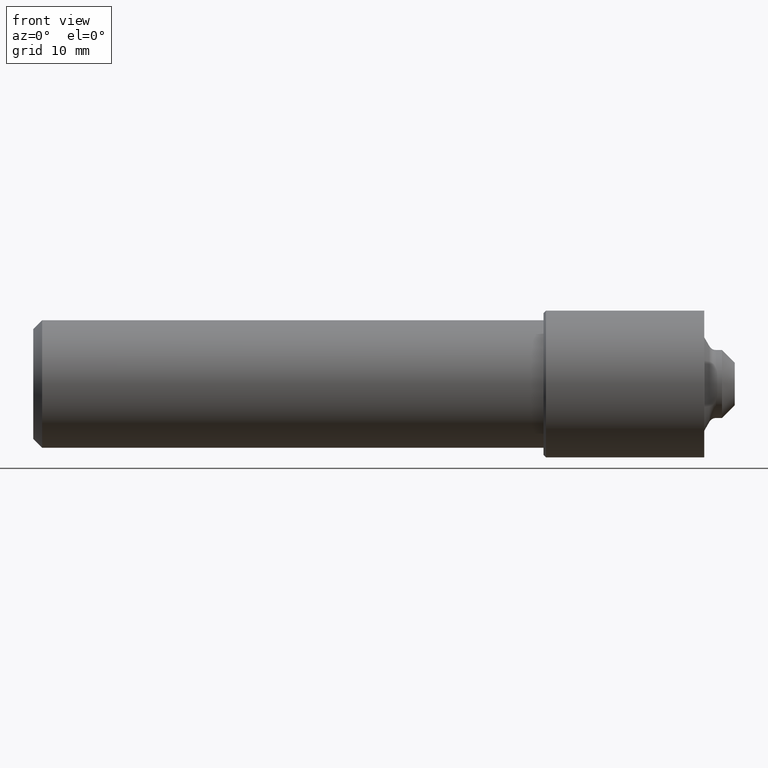
[diagram: clean part render]
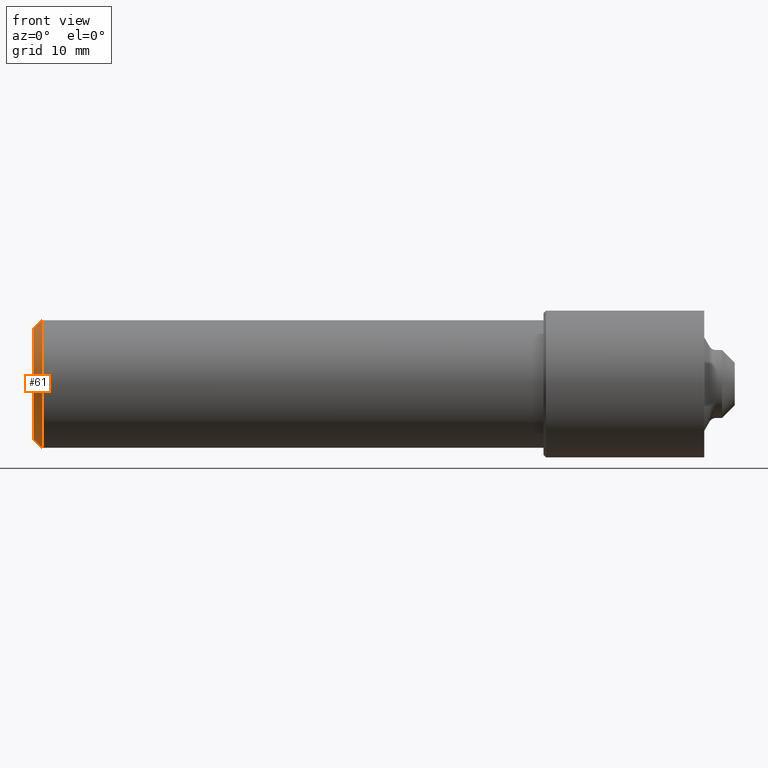
[diagram: same view with one face highlighted and labeled with its STEP entity id]
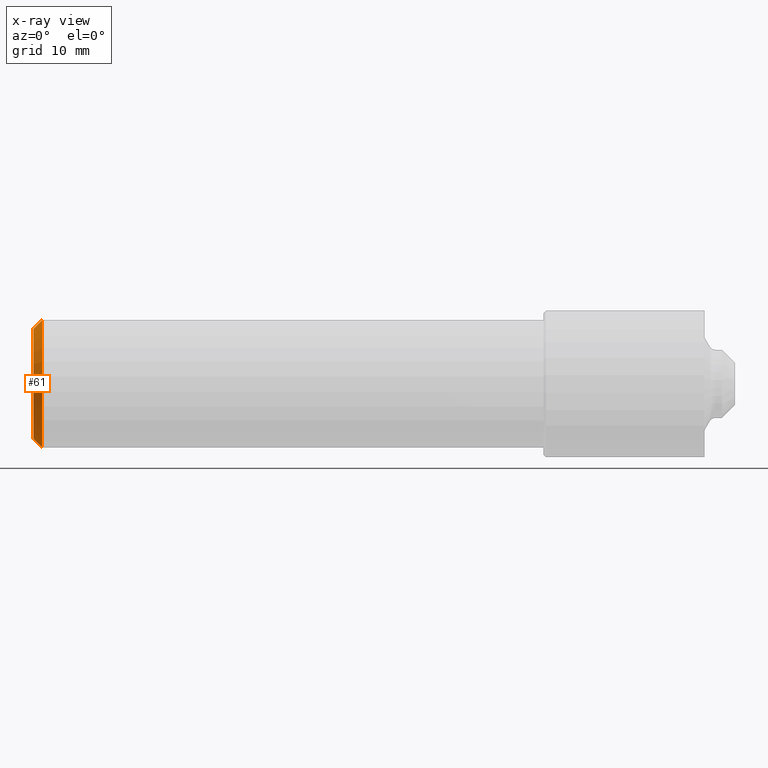
[diagram: x-ray of the same camera — body ghosted, the highlighted face saturated]
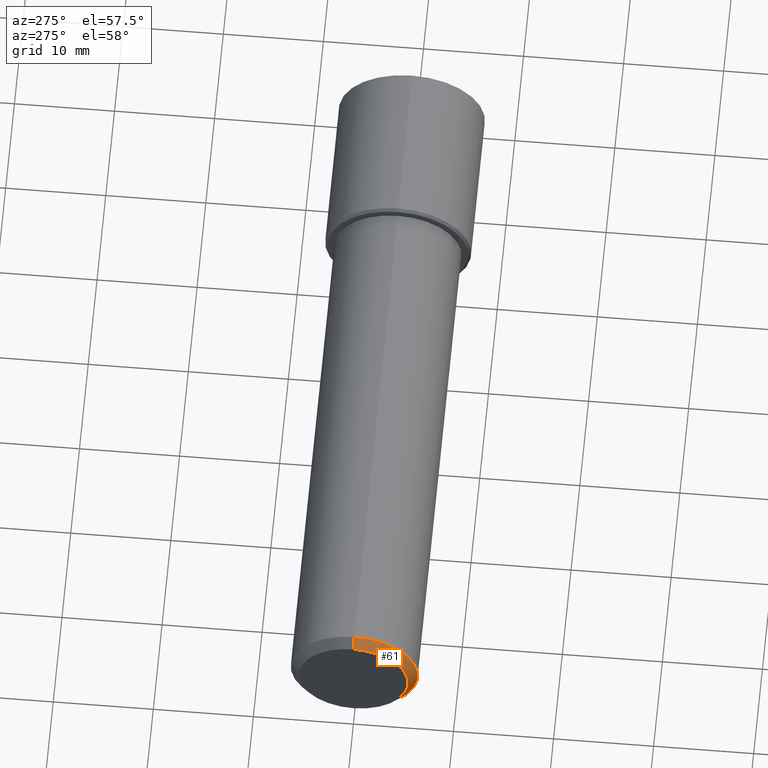
[diagram: same view with one face highlighted and labeled with its STEP entity id]
A machine part, front view. The second image highlights one B-rep face of the part: STEP entity #61.
The next image is the same camera in x-ray: the body ghosted, the highlighted face saturated — about 0% of this face is hidden behind the body in this view.
A second angle (auxiliary view) of the same face is appended — the face is thin or edge-on in the first view.
In plain terms, the highlighted conical surface has half-angle 45 deg.
Its self-contained STEP definition (entity closure, byte-faithful):
#7 = CARTESIAN_POINT ( 'NONE',  ( 0.000000000000000000, 2.847303808017596681E-17, 0.2150000000000001354 ) ) ;
#24 = EDGE_CURVE ( 'NONE', #486, #97, #380, .T. ) ;
#36 = CIRCLE ( 'NONE', #48, 0.2150000000000001354 ) ;
#37 = EDGE_LOOP ( 'NONE', ( #559, #489, #540, #363 ) ) ;
#48 = AXIS2_PLACEMENT_3D ( 'NONE', #332, #420, #71 ) ;
#61 = ADVANCED_FACE ( 'NONE', ( #282 ), #423, .T. ) ;
#71 = DIRECTION ( 'NONE',  ( 0.000000000000000000, 0.000000000000000000, 1.000000000000000000 ) ) ;
#93 = EDGE_CURVE ( 'NONE', #238, #342, #36, .T. ) ;
#97 = VERTEX_POINT ( 'NONE', #164 ) ;
#141 = DIRECTION ( 'NONE',  ( 0.7071067811865489050, 0.000000000000000000, -0.7071067811865461294 ) ) ;
#144 = DIRECTION ( 'NONE',  ( 0.7071067811865489050, 8.659560562354915602E-17, 0.7071067811865461294 ) ) ;
#152 = DIRECTION ( 'NONE',  ( 0.000000000000000000, 0.000000000000000000, 1.000000000000000000 ) ) ;
#162 = DIRECTION ( 'NONE',  ( 0.000000000000000000, 0.000000000000000000, -1.000000000000000000 ) ) ;
#164 = CARTESIAN_POINT ( 'NONE',  ( 0.03500000000000000333, 0.000000000000000000, 0.2500000000000000000 ) ) ;
#192 = LINE ( 'NONE', #527, #277 ) ;
#197 = AXIS2_PLACEMENT_3D ( 'NONE', #246, #403, #162 ) ;
#238 = VERTEX_POINT ( 'NONE', #383 ) ;
#246 = CARTESIAN_POINT ( 'NONE',  ( 0.03500000000000000333, 0.000000000000000000, 0.000000000000000000 ) ) ;
#277 = VECTOR ( 'NONE', #141, 39.37007874015748143 ) ;
#282 = FACE_OUTER_BOUND ( 'NONE', #37, .T. ) ;
#307 = EDGE_CURVE ( 'NONE', #238, #486, #192, .T. ) ;
#329 = DIRECTION ( 'NONE',  ( -1.000000000000000000, -0.000000000000000000, -0.000000000000000000 ) ) ;
#332 = CARTESIAN_POINT ( 'NONE',  ( 0.000000000000000000, 0.000000000000000000, 0.000000000000000000 ) ) ;
#342 = VERTEX_POINT ( 'NONE', #7 ) ;
#357 = CARTESIAN_POINT ( 'NONE',  ( 0.03500000000000000333, 3.061616997868383018E-17, 0.2500000000000000000 ) ) ;
#363 = ORIENTED_EDGE ( 'NONE', *, *, #24, .T. ) ;
#364 = CARTESIAN_POINT ( 'NONE',  ( 0.03500000000000000333, 0.000000000000000000, 0.000000000000000000 ) ) ;
#380 = CIRCLE ( 'NONE', #522, 0.2500000000000000000 ) ;
#383 = CARTESIAN_POINT ( 'NONE',  ( 0.000000000000000000, 0.000000000000000000, -0.2150000000000001354 ) ) ;
#389 = LINE ( 'NONE', #357, #453 ) ;
#396 = EDGE_CURVE ( 'NONE', #342, #97, #389, .T. ) ;
#403 = DIRECTION ( 'NONE',  ( 1.000000000000000000, 0.000000000000000000, 0.000000000000000000 ) ) ;
#420 = DIRECTION ( 'NONE',  ( -1.000000000000000000, -0.000000000000000000, -0.000000000000000000 ) ) ;
#423 = CONICAL_SURFACE ( 'NONE', #197, 0.2500000000000000000, 0.7853981633974463916 ) ;
#428 = CARTESIAN_POINT ( 'NONE',  ( 0.03500000000000000333, 3.061616997868383018E-17, -0.2500000000000000000 ) ) ;
#453 = VECTOR ( 'NONE', #144, 39.37007874015748143 ) ;
#486 = VERTEX_POINT ( 'NONE', #428 ) ;
#489 = ORIENTED_EDGE ( 'NONE', *, *, #93, .F. ) ;
#522 = AXIS2_PLACEMENT_3D ( 'NONE', #364, #329, #152 ) ;
#527 = CARTESIAN_POINT ( 'NONE',  ( 0.03500000000000000333, 0.000000000000000000, -0.2500000000000000000 ) ) ;
#540 = ORIENTED_EDGE ( 'NONE', *, *, #307, .T. ) ;
#559 = ORIENTED_EDGE ( 'NONE', *, *, #396, .F. ) ;